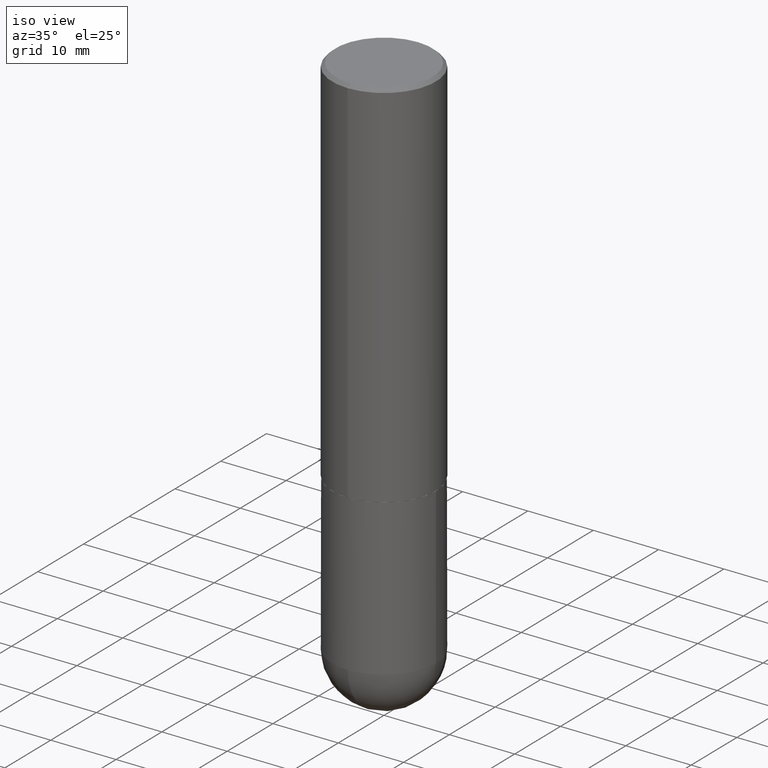
[diagram: clean part render]
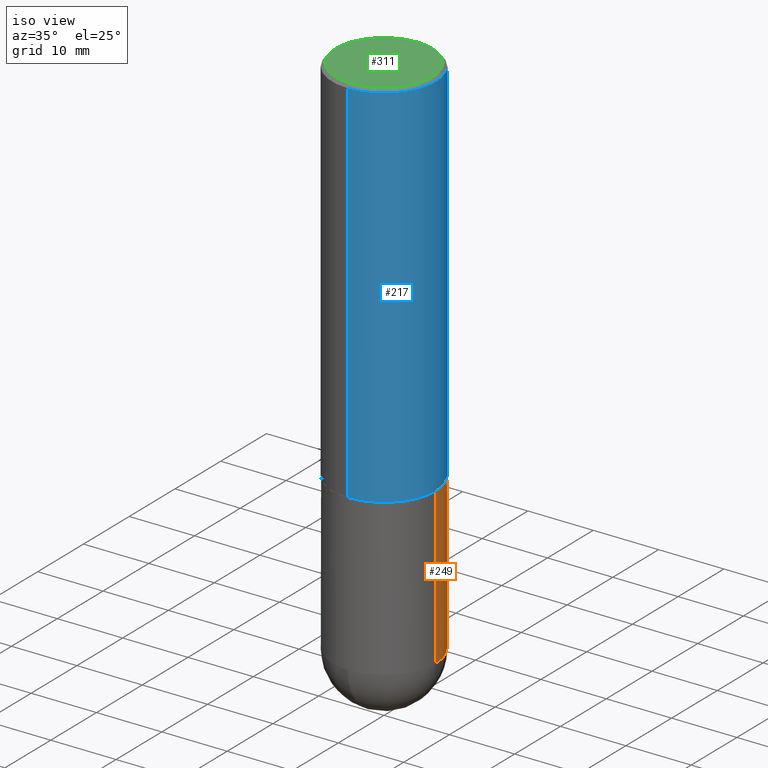
[diagram: same view with three faces highlighted in distinct colors, each labeled with its STEP entity id]
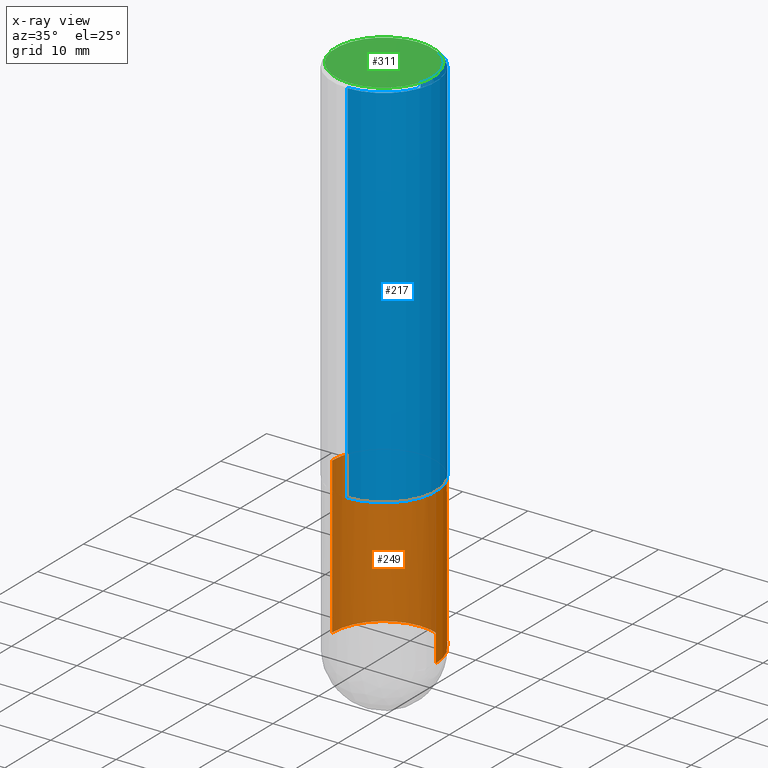
[diagram: x-ray of the same camera — body ghosted, the three highlighted faces saturated]
A machine part, iso view with three faces highlighted in distinct colors.
The next image is the same camera in x-ray (body ghosted, the three faces saturated) — at least one of them is partly hidden behind the body in this view.
Their STEP definitions:

[orange] entity #249 — the highlighted cylindrical surface (partial cylindrical patch) has radius 7.9375 mm, axis along (-0, 0, 1).
#4 = LINE ( 'NONE', #8, #139 ) ;
#8 = CARTESIAN_POINT ( 'NONE',  ( -0.3125000000000000000, 2.220446049250313081E-15, -1.537167215704658232E-29 ) ) ;
#17 = VERTEX_POINT ( 'NONE', #290 ) ;
#27 = DIRECTION ( 'NONE',  ( -2.445468806185136597E-29, 3.491481338843145583E-15, 1.000000000000000000 ) ) ;
#28 = EDGE_CURVE ( 'NONE', #130, #406, #4, .T. ) ;
#42 = AXIS2_PLACEMENT_3D ( 'NONE', #195, #27, #161 ) ;
#47 = CYLINDRICAL_SURFACE ( 'NONE', #54, 0.3125000000000000000 ) ;
#54 = AXIS2_PLACEMENT_3D ( 'NONE', #110, #266, #248 ) ;
#55 = ORIENTED_EDGE ( 'NONE', *, *, #112, .F. ) ;
#56 = VERTEX_POINT ( 'NONE', #71 ) ;
#62 = DIRECTION ( 'NONE',  ( -2.445468806185136877E-29, 3.491481338843145188E-15, 1.000000000000000000 ) ) ;
#71 = CARTESIAN_POINT ( 'NONE',  ( 2.182175836777035261E-15, 0.3124999999999887867, -3.187500000000000888 ) ) ;
#94 = EDGE_CURVE ( 'NONE', #56, #130, #146, .T. ) ;
#103 = CIRCLE ( 'NONE', #42, 0.3125000000000000000 ) ;
#110 = CARTESIAN_POINT ( 'NONE',  ( 0.000000000000000000, 0.000000000000000000, 0.000000000000000000 ) ) ;
#112 = EDGE_CURVE ( 'NONE', #17, #332, #193, .T. ) ;
#113 = DIRECTION ( 'NONE',  ( 1.000000000000000000, -6.982962677686269077E-15, 0.000000000000000000 ) ) ;
#115 = EDGE_CURVE ( 'NONE', #17, #56, #103, .T. ) ;
#118 = CARTESIAN_POINT ( 'NONE',  ( 0.3125000000000000000, -1.003800884917403522E-14, -2.249999999999999556 ) ) ;
#125 = EDGE_CURVE ( 'NONE', #332, #406, #378, .T. ) ;
#130 = VERTEX_POINT ( 'NONE', #303 ) ;
#139 = VECTOR ( 'NONE', #62, 39.37007874015748143 ) ;
#146 = CIRCLE ( 'NONE', #153, 0.3125000000000000000 ) ;
#153 = AXIS2_PLACEMENT_3D ( 'NONE', #385, #233, #198 ) ;
#161 = DIRECTION ( 'NONE',  ( 1.000000000000000000, -6.982962677686269077E-15, 0.000000000000000000 ) ) ;
#190 = ORIENTED_EDGE ( 'NONE', *, *, #115, .T. ) ;
#193 = LINE ( 'NONE', #319, #280 ) ;
#195 = CARTESIAN_POINT ( 'NONE',  ( 7.794931819715121781E-29, -1.112909676756252622E-14, -3.187500000000000000 ) ) ;
#198 = DIRECTION ( 'NONE',  ( 1.000000000000000000, -6.982962677686269077E-15, 0.000000000000000000 ) ) ;
#199 = AXIS2_PLACEMENT_3D ( 'NONE', #412, #214, #113 ) ;
#214 = DIRECTION ( 'NONE',  ( -2.445468806185136597E-29, 3.491481338843145583E-15, 1.000000000000000000 ) ) ;
#229 = DIRECTION ( 'NONE',  ( -2.445468806185136877E-29, 3.491481338843145188E-15, 1.000000000000000000 ) ) ;
#233 = DIRECTION ( 'NONE',  ( -2.445468806185136597E-29, 3.491481338843145583E-15, 1.000000000000000000 ) ) ;
#239 = FACE_OUTER_BOUND ( 'NONE', #402, .T. ) ;
#248 = DIRECTION ( 'NONE',  ( 1.000000000000000000, -6.982962677686266711E-15, 4.876176775795936353E-29 ) ) ;
#249 = ADVANCED_FACE ( 'NONE', ( #239 ), #47, .T. ) ;
#252 = ORIENTED_EDGE ( 'NONE', *, *, #28, .T. ) ;
#266 = DIRECTION ( 'NONE',  ( -2.445468806185136597E-29, 3.491481338843145583E-15, 1.000000000000000000 ) ) ;
#280 = VECTOR ( 'NONE', #229, 39.37007874015748143 ) ;
#290 = CARTESIAN_POINT ( 'NONE',  ( 0.3125000000000000000, -1.167464072675676384E-14, -3.187500000000000000 ) ) ;
#303 = CARTESIAN_POINT ( 'NONE',  ( -0.3125000000000000000, -7.272018840729490833E-15, -3.187500000000000000 ) ) ;
#319 = CARTESIAN_POINT ( 'NONE',  ( 0.3125000000000000000, -2.182175836776958347E-15, 1.523805242436230075E-29 ) ) ;
#332 = VERTEX_POINT ( 'NONE', #118 ) ;
#348 = ORIENTED_EDGE ( 'NONE', *, *, #94, .T. ) ;
#356 = CARTESIAN_POINT ( 'NONE',  ( -0.3125000000000000000, -7.272018840729487678E-15, -2.249999999999999556 ) ) ;
#378 = CIRCLE ( 'NONE', #199, 0.3125000000000000000 ) ;
#385 = CARTESIAN_POINT ( 'NONE',  ( 7.794931819715121781E-29, -1.112909676756252622E-14, -3.187500000000000000 ) ) ;
#402 = EDGE_LOOP ( 'NONE', ( #348, #252, #408, #55, #190 ) ) ;
#406 = VERTEX_POINT ( 'NONE', #356 ) ;
#408 = ORIENTED_EDGE ( 'NONE', *, *, #125, .F. ) ;
#412 = CARTESIAN_POINT ( 'NONE',  ( 5.502304813916556222E-29, -7.855833012397076871E-15, -2.249999999999999556 ) ) ;

[blue] entity #217 — the highlighted cylindrical surface (partial cylindrical patch) has radius 7.9375 mm, axis along (-0, 0, 1).
#21 = AXIS2_PLACEMENT_3D ( 'NONE', #179, #105, #213 ) ;
#29 = VERTEX_POINT ( 'NONE', #133 ) ;
#37 = ORIENTED_EDGE ( 'NONE', *, *, #212, .T. ) ;
#51 = LINE ( 'NONE', #205, #312 ) ;
#70 = ORIENTED_EDGE ( 'NONE', *, *, #234, .F. ) ;
#78 = CYLINDRICAL_SURFACE ( 'NONE', #21, 0.3125000000000002220 ) ;
#83 = CARTESIAN_POINT ( 'NONE',  ( 2.182175836776959530E-15, 0.3125000000000000555, -0.02000000000000116615 ) ) ;
#105 = DIRECTION ( 'NONE',  ( -2.445464617341479708E-29, 3.491487337505676197E-15, 1.000000000000000000 ) ) ;
#124 = AXIS2_PLACEMENT_3D ( 'NONE', #380, #221, #184 ) ;
#133 = CARTESIAN_POINT ( 'NONE',  ( 2.220446049250342269E-15, 0.3124999999999924505, -2.249000000000000998 ) ) ;
#149 = DIRECTION ( 'NONE',  ( -2.445464617341479708E-29, 3.491487337505675803E-15, 1.000000000000000000 ) ) ;
#151 = ORIENTED_EDGE ( 'NONE', *, *, #337, .F. ) ;
#158 = EDGE_LOOP ( 'NONE', ( #37, #383, #151, #70 ) ) ;
#174 = CIRCLE ( 'NONE', #250, 0.3125000000000002776 ) ;
#179 = CARTESIAN_POINT ( 'NONE',  ( 0.000000000000000000, 0.000000000000000000, 0.000000000000000000 ) ) ;
#180 = CARTESIAN_POINT ( 'NONE',  ( 5.499849924400987156E-29, -7.852355022050265044E-15, -2.248999999999999666 ) ) ;
#182 = DIRECTION ( 'NONE',  ( -2.445464617341479708E-29, 3.491487337505675803E-15, 1.000000000000000000 ) ) ;
#184 = DIRECTION ( 'NONE',  ( -6.982962677686265133E-15, -1.000000000000000000, 3.496765431890254947E-15 ) ) ;
#202 = EDGE_CURVE ( 'NONE', #29, #277, #333, .T. ) ;
#205 = CARTESIAN_POINT ( 'NONE',  ( -2.182175836776959530E-15, -0.3125000000000002220, 1.091089792970524551E-15 ) ) ;
#207 = DIRECTION ( 'NONE',  ( -2.445464617341479708E-29, 3.491487337505676197E-15, 1.000000000000000000 ) ) ;
#212 = EDGE_CURVE ( 'NONE', #377, #29, #174, .T. ) ;
#213 = DIRECTION ( 'NONE',  ( -6.982962677686265922E-15, -1.000000000000000000, 3.491487337505676197E-15 ) ) ;
#217 = ADVANCED_FACE ( 'NONE', ( #401 ), #78, .T. ) ;
#221 = DIRECTION ( 'NONE',  ( -2.445464617341479708E-29, 3.491487337505676197E-15, 1.000000000000000000 ) ) ;
#234 = EDGE_CURVE ( 'NONE', #377, #395, #51, .T. ) ;
#240 = CARTESIAN_POINT ( 'NONE',  ( -2.182175836776905099E-15, -0.3125000000000081601, -2.248999999999998778 ) ) ;
#250 = AXIS2_PLACEMENT_3D ( 'NONE', #180, #207, #273 ) ;
#273 = DIRECTION ( 'NONE',  ( -6.982962677686265922E-15, -1.000000000000000000, 3.496765431890253764E-15 ) ) ;
#277 = VERTEX_POINT ( 'NONE', #83 ) ;
#310 = CARTESIAN_POINT ( 'NONE',  ( 2.220446049250314264E-15, 0.3125000000000002220, -1.091089792970524551E-15 ) ) ;
#312 = VECTOR ( 'NONE', #182, 39.37007874015748143 ) ;
#333 = LINE ( 'NONE', #310, #349 ) ;
#337 = EDGE_CURVE ( 'NONE', #395, #277, #351, .T. ) ;
#349 = VECTOR ( 'NONE', #149, 39.37007874015748143 ) ;
#351 = CIRCLE ( 'NONE', #124, 0.3125000000000001665 ) ;
#377 = VERTEX_POINT ( 'NONE', #240 ) ;
#380 = CARTESIAN_POINT ( 'NONE',  ( 4.890929234682977809E-31, -6.982974675011377983E-17, -0.02000000000000007327 ) ) ;
#383 = ORIENTED_EDGE ( 'NONE', *, *, #202, .T. ) ;
#395 = VERTEX_POINT ( 'NONE', #409 ) ;
#401 = FACE_OUTER_BOUND ( 'NONE', #158, .T. ) ;
#409 = CARTESIAN_POINT ( 'NONE',  ( -2.143905624303604008E-15, -0.3125000000000002220, -0.01999999999999898040 ) ) ;

[green] entity #311 — the highlighted planar face has unit normal (0, -0, -1).
#34 = AXIS2_PLACEMENT_3D ( 'NONE', #296, #320, #393 ) ;
#38 = EDGE_CURVE ( 'NONE', #260, #315, #407, .T. ) ;
#65 = CIRCLE ( 'NONE', #299, 0.2925000000000003153 ) ;
#81 = AXIS2_PLACEMENT_3D ( 'NONE', #278, #251, #92 ) ;
#92 = DIRECTION ( 'NONE',  ( 6.982962677686265922E-15, 1.000000000000000000, -3.491487337505675803E-15 ) ) ;
#120 = ORIENTED_EDGE ( 'NONE', *, *, #171, .T. ) ;
#144 = DIRECTION ( 'NONE',  ( -2.445464617341479708E-29, 3.491487337505676197E-15, 1.000000000000000000 ) ) ;
#150 = CARTESIAN_POINT ( 'NONE',  ( 2.112346210000097415E-15, 0.2925000000000003153, -1.170656228765135543E-15 ) ) ;
#155 = PLANE ( 'NONE',  #81 ) ;
#171 = EDGE_CURVE ( 'NONE', #315, #260, #65, .T. ) ;
#177 = ORIENTED_EDGE ( 'NONE', *, *, #38, .T. ) ;
#211 = EDGE_LOOP ( 'NONE', ( #177, #120 ) ) ;
#251 = DIRECTION ( 'NONE',  ( 2.445464617341479708E-29, -3.491487337505675803E-15, -1.000000000000000000 ) ) ;
#260 = VERTEX_POINT ( 'NONE', #150 ) ;
#271 = CARTESIAN_POINT ( 'NONE',  ( 3.653430783790117894E-45, -5.216148796265909965E-31, -1.493961825447241672E-16 ) ) ;
#278 = CARTESIAN_POINT ( 'NONE',  ( 2.042516583223234906E-15, 0.2925000000000003153, -1.095958137492773348E-15 ) ) ;
#296 = CARTESIAN_POINT ( 'NONE',  ( 3.653430783790117894E-45, -5.216148796265909965E-31, -1.493961825447241672E-16 ) ) ;
#299 = AXIS2_PLACEMENT_3D ( 'NONE', #271, #144, #335 ) ;
#311 = ADVANCED_FACE ( 'NONE', ( #339 ), #155, .F. ) ;
#315 = VERTEX_POINT ( 'NONE', #405 ) ;
#320 = DIRECTION ( 'NONE',  ( -2.445464617341479708E-29, 3.491487337505676197E-15, 1.000000000000000000 ) ) ;
#335 = DIRECTION ( 'NONE',  ( -6.982962677686265922E-15, -1.000000000000000000, 3.491487337505676197E-15 ) ) ;
#339 = FACE_OUTER_BOUND ( 'NONE', #211, .T. ) ;
#393 = DIRECTION ( 'NONE',  ( -6.982962677686265922E-15, -1.000000000000000000, 3.491487337505676197E-15 ) ) ;
#405 = CARTESIAN_POINT ( 'NONE',  ( -2.075300644325889465E-15, -0.2925000000000003153, 8.718638636756871588E-16 ) ) ;
#407 = CIRCLE ( 'NONE', #34, 0.2925000000000003153 ) ;